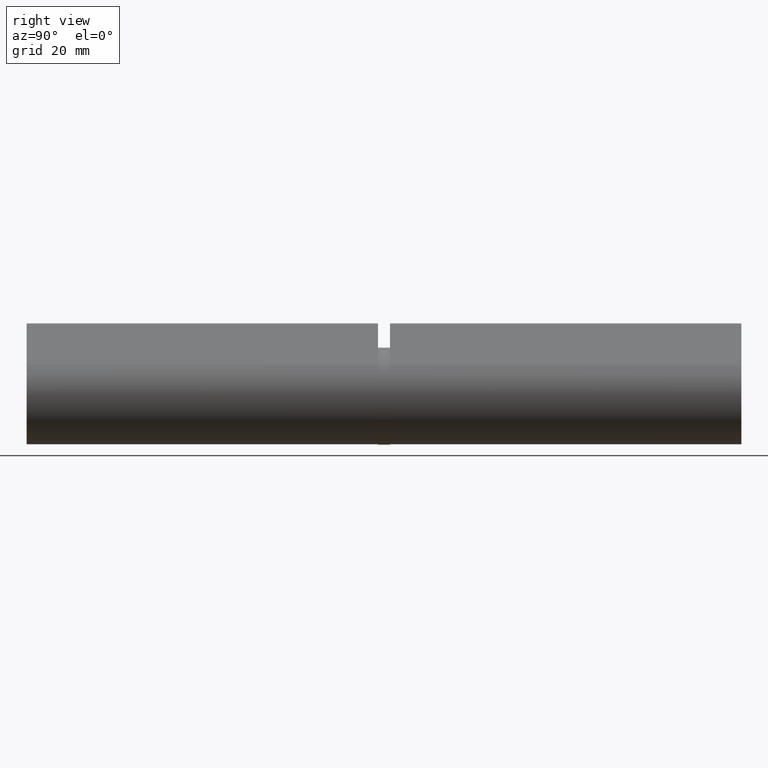
[diagram: clean part render]
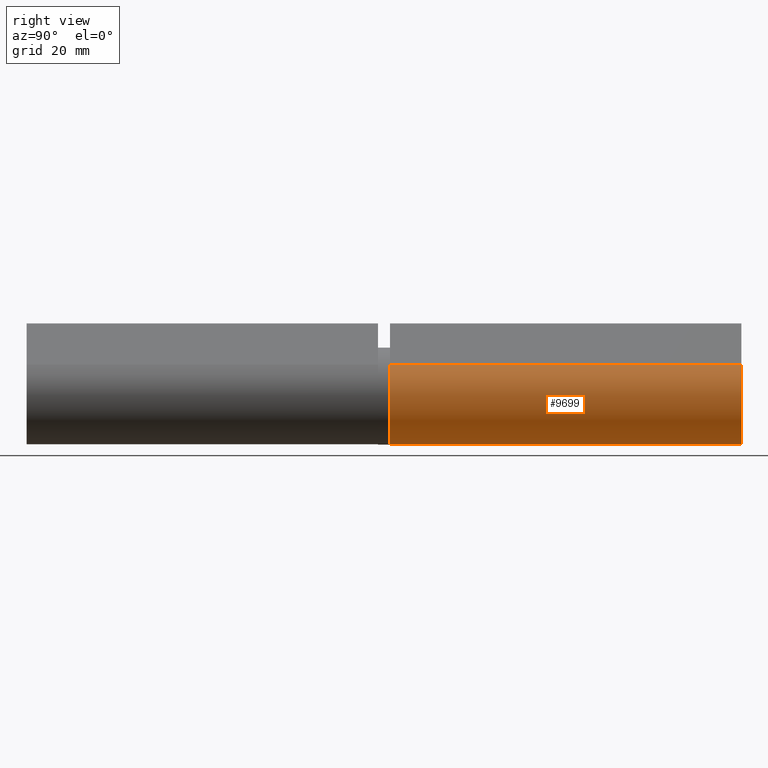
[diagram: same view with one face highlighted and labeled with its STEP entity id]
A machine part, right view. The second image highlights one B-rep face of the part: STEP entity #9699.
In plain terms, the highlighted cylindrical surface (partial cylindrical patch) has radius 8 mm, axis along (0, 1, -0).
Its self-contained STEP definition (entity closure, byte-faithful):
#873 = ORIENTED_EDGE ( 'NONE', *, *, #13171, .F. ) ;
#1161 = ORIENTED_EDGE ( 'NONE', *, *, #5002, .T. ) ;
#1174 = VECTOR ( 'NONE', #13078, 1000.000000000000000 ) ;
#1423 = CARTESIAN_POINT ( 'NONE',  ( 0.000000000000000000, 29.00000000000000000, 0.000000000000000000 ) ) ;
#1870 = CARTESIAN_POINT ( 'NONE',  ( 6.064555051882675407, 29.00000000000000000, 5.217391304347824388 ) ) ;
#2079 = CARTESIAN_POINT ( 'NONE',  ( -6.064555051882675407, 29.00000000000000000, 5.217391304347824388 ) ) ;
#2438 = CYLINDRICAL_SURFACE ( 'NONE', #5679, 7.999999999999998224 ) ;
#3088 = DIRECTION ( 'NONE',  ( -0.000000000000000000, -1.000000000000000000, -0.000000000000000000 ) ) ;
#3114 = VERTEX_POINT ( 'NONE', #11372 ) ;
#3208 = ORIENTED_EDGE ( 'NONE', *, *, #7404, .F. ) ;
#3321 = AXIS2_PLACEMENT_3D ( 'NONE', #12385, #11403, #10345 ) ;
#3372 = CARTESIAN_POINT ( 'NONE',  ( 0.000000000000000000, 29.00000000000000000, 0.000000000000000000 ) ) ;
#3799 = CARTESIAN_POINT ( 'NONE',  ( 6.064555051882675407, 29.00000000000000000, 5.217391304347824388 ) ) ;
#4102 = VERTEX_POINT ( 'NONE', #13052 ) ;
#4353 = DIRECTION ( 'NONE',  ( 0.000000000000000000, 1.000000000000000000, 0.000000000000000000 ) ) ;
#4485 = AXIS2_PLACEMENT_3D ( 'NONE', #1423, #4353, #5386 ) ;
#4975 = CIRCLE ( 'NONE', #4485, 7.999999999999998224 ) ;
#5002 = EDGE_CURVE ( 'NONE', #8315, #4102, #10277, .T. ) ;
#5386 = DIRECTION ( 'NONE',  ( 0.000000000000000000, 0.000000000000000000, 1.000000000000000000 ) ) ;
#5679 = AXIS2_PLACEMENT_3D ( 'NONE', #3372, #12567, #7445 ) ;
#7404 = EDGE_CURVE ( 'NONE', #3114, #4102, #10770, .T. ) ;
#7445 = DIRECTION ( 'NONE',  ( 0.000000000000000000, 0.000000000000000000, -1.000000000000000000 ) ) ;
#8315 = VERTEX_POINT ( 'NONE', #11337 ) ;
#9156 = LINE ( 'NONE', #1870, #1174 ) ;
#9699 = ADVANCED_FACE ( 'NONE', ( #9942 ), #2438, .T. ) ;
#9829 = EDGE_LOOP ( 'NONE', ( #1161, #3208, #873, #12562 ) ) ;
#9942 = FACE_OUTER_BOUND ( 'NONE', #9829, .T. ) ;
#9976 = VECTOR ( 'NONE', #3088, 1000.000000000000000 ) ;
#10277 = CIRCLE ( 'NONE', #3321, 7.999999999999998224 ) ;
#10345 = DIRECTION ( 'NONE',  ( 0.000000000000000000, 0.000000000000000000, 1.000000000000000000 ) ) ;
#10734 = EDGE_CURVE ( 'NONE', #11022, #8315, #9156, .T. ) ;
#10770 = LINE ( 'NONE', #2079, #9976 ) ;
#11022 = VERTEX_POINT ( 'NONE', #3799 ) ;
#11337 = CARTESIAN_POINT ( 'NONE',  ( 6.064555051882675407, -29.00000000000000000, 5.217391304347824388 ) ) ;
#11372 = CARTESIAN_POINT ( 'NONE',  ( -6.064555051882675407, 29.00000000000000000, 5.217391304347824388 ) ) ;
#11403 = DIRECTION ( 'NONE',  ( 0.000000000000000000, 1.000000000000000000, 0.000000000000000000 ) ) ;
#12385 = CARTESIAN_POINT ( 'NONE',  ( 0.000000000000000000, -29.00000000000000000, 0.000000000000000000 ) ) ;
#12562 = ORIENTED_EDGE ( 'NONE', *, *, #10734, .T. ) ;
#12567 = DIRECTION ( 'NONE',  ( -0.000000000000000000, -1.000000000000000000, -0.000000000000000000 ) ) ;
#13052 = CARTESIAN_POINT ( 'NONE',  ( -6.064555051882675407, -29.00000000000000000, 5.217391304347824388 ) ) ;
#13078 = DIRECTION ( 'NONE',  ( -0.000000000000000000, -1.000000000000000000, -0.000000000000000000 ) ) ;
#13171 = EDGE_CURVE ( 'NONE', #11022, #3114, #4975, .T. ) ;